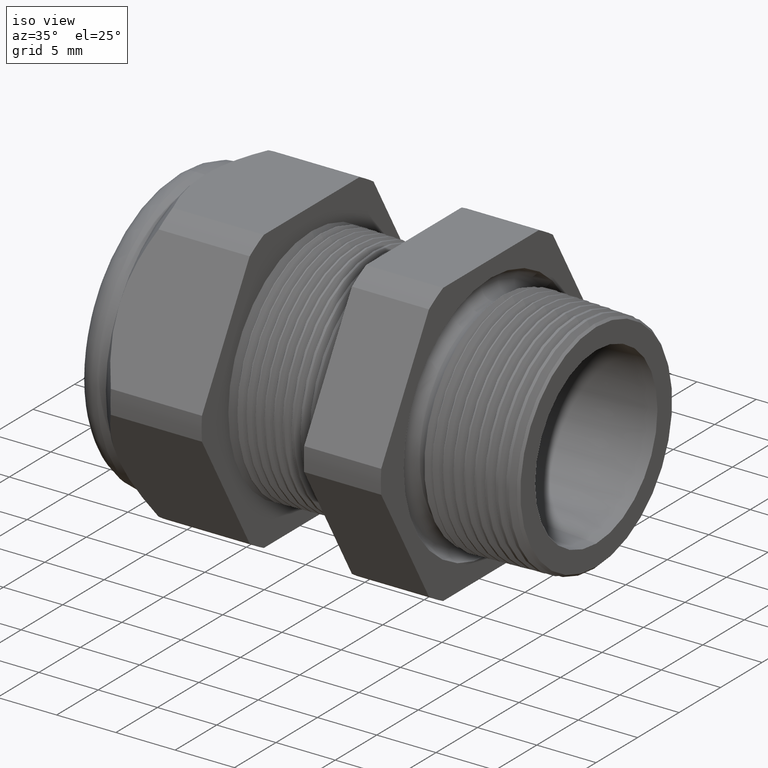
[diagram: clean part render]
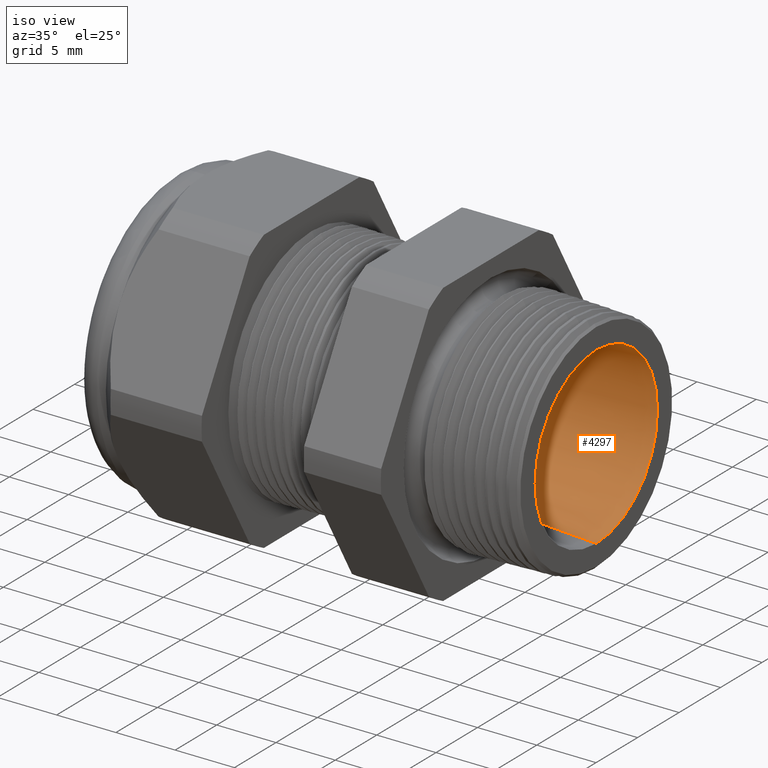
[diagram: same view with one face highlighted and labeled with its STEP entity id]
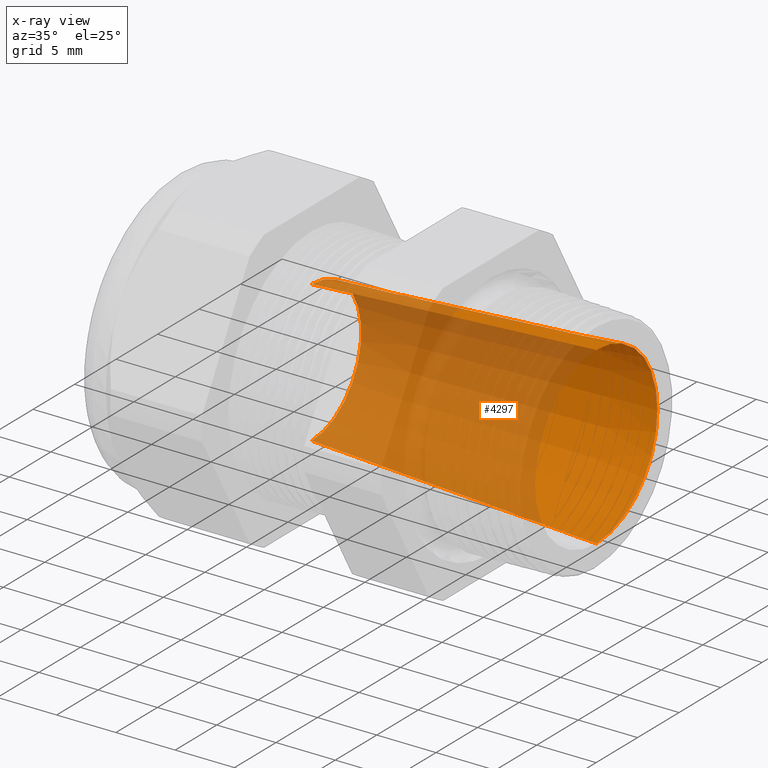
[diagram: x-ray of the same camera — body ghosted, the highlighted face saturated]
A machine part, iso view. The second image highlights one B-rep face of the part: STEP entity #4297.
The next image is the same camera in x-ray: the body ghosted, the highlighted face saturated — about 66% of this face is hidden behind the body in this view.
In plain terms, the highlighted conical surface has half-angle 3.344 deg.
Its self-contained STEP definition (entity closure, byte-faithful):
#616 = DIRECTION ( 'NONE',  ( 0.9982972455772092200, 0.0000000000000000000, -0.05833189070274503300 ) ) ;
#617 = VECTOR ( 'NONE', #616, 39.37007874015748900 ) ;
#618 = CARTESIAN_POINT ( 'NONE',  ( -0.9054330708661418900, 0.0000000000000000000, -0.2350000000000000100 ) ) ;
#619 = LINE ( 'NONE', #618, #617 ) ;
#849 = DIRECTION ( 'NONE',  ( 0.9982972455772092200, 7.143596323732995500E-018, 0.05833189070274503300 ) ) ;
#850 = VECTOR ( 'NONE', #849, 39.37007874015748900 ) ;
#851 = CARTESIAN_POINT ( 'NONE',  ( -0.9054330708661418900, 2.877919977996280400E-017, 0.2350000000000000100 ) ) ;
#857 = LINE ( 'NONE', #851, #850 ) ;
#858 = CARTESIAN_POINT ( 'NONE',  ( -0.9054330708661418900, 2.877919977996280400E-017, 0.2350000000000000100 ) ) ;
#859 = CARTESIAN_POINT ( 'NONE',  ( 0.03999999999999997300, 0.0000000000000000000, -0.2902429637573903900 ) ) ;
#865 = CARTESIAN_POINT ( 'NONE',  ( -0.9054330708661418900, 0.0000000000000000000, -0.2350000000000000100 ) ) ;
#871 = CARTESIAN_POINT ( 'NONE',  ( 0.03999999999999997300, 3.554451165405293600E-017, 0.2902429637573903900 ) ) ;
#2303 = DIRECTION ( 'NONE',  ( 1.000000000000000000, 0.0000000000000000000, 0.0000000000000000000 ) ) ;
#2304 = CARTESIAN_POINT ( 'NONE',  ( -0.9054330708661418900, 0.0000000000000000000, 0.0000000000000000000 ) ) ;
#2305 = AXIS2_PLACEMENT_3D ( 'NONE', #2304, #2303, #2368 ) ;
#2307 = CONICAL_SURFACE ( 'NONE', #2305, 0.2350000000000000100, 0.05836502156429304600 ) ;
#2308 = FACE_OUTER_BOUND ( 'NONE', #4298, .T. ) ;
#2309 = DIRECTION ( 'NONE',  ( 0.0000000000000000000, 0.0000000000000000000, -1.000000000000000000 ) ) ;
#2310 = DIRECTION ( 'NONE',  ( 1.000000000000000000, 0.0000000000000000000, 0.0000000000000000000 ) ) ;
#2311 = CARTESIAN_POINT ( 'NONE',  ( -0.9054330708661418900, 0.0000000000000000000, 0.0000000000000000000 ) ) ;
#2312 = AXIS2_PLACEMENT_3D ( 'NONE', #2311, #2310, #2309 ) ;
#2317 = CIRCLE ( 'NONE', #2312, 0.2350000000000000100 ) ;
#2368 = DIRECTION ( 'NONE',  ( 0.0000000000000000000, 0.0000000000000000000, -1.000000000000000000 ) ) ;
#2454 = DIRECTION ( 'NONE',  ( 0.0000000000000000000, 0.0000000000000000000, -1.000000000000000000 ) ) ;
#2455 = DIRECTION ( 'NONE',  ( 1.000000000000000000, 0.0000000000000000000, 0.0000000000000000000 ) ) ;
#2456 = CARTESIAN_POINT ( 'NONE',  ( 0.03999999999999997300, 0.0000000000000000000, 0.0000000000000000000 ) ) ;
#2457 = AXIS2_PLACEMENT_3D ( 'NONE', #2456, #2455, #2454 ) ;
#2458 = CIRCLE ( 'NONE', #2457, 0.2902429637573903900 ) ;
#3447 = EDGE_CURVE ( 'NONE', #3559, #3562, #619, .T. ) ;
#3555 = VERTEX_POINT ( 'NONE', #871 ) ;
#3559 = VERTEX_POINT ( 'NONE', #865 ) ;
#3562 = VERTEX_POINT ( 'NONE', #859 ) ;
#3563 = VERTEX_POINT ( 'NONE', #858 ) ;
#3565 = EDGE_CURVE ( 'NONE', #3563, #3555, #857, .T. ) ;
#4296 = EDGE_CURVE ( 'NONE', #3559, #3563, #2317, .T. ) ;
#4297 = ADVANCED_FACE ( 'NONE', ( #2308 ), #2307, .F. ) ;
#4298 = EDGE_LOOP ( 'NONE', ( #4299, #4300, #4301, #4358 ) ) ;
#4299 = ORIENTED_EDGE ( 'NONE', *, *, #3565, .F. ) ;
#4300 = ORIENTED_EDGE ( 'NONE', *, *, #4296, .F. ) ;
#4301 = ORIENTED_EDGE ( 'NONE', *, *, #3447, .T. ) ;
#4358 = ORIENTED_EDGE ( 'NONE', *, *, #4359, .T. ) ;
#4359 = EDGE_CURVE ( 'NONE', #3562, #3555, #2458, .T. ) ;